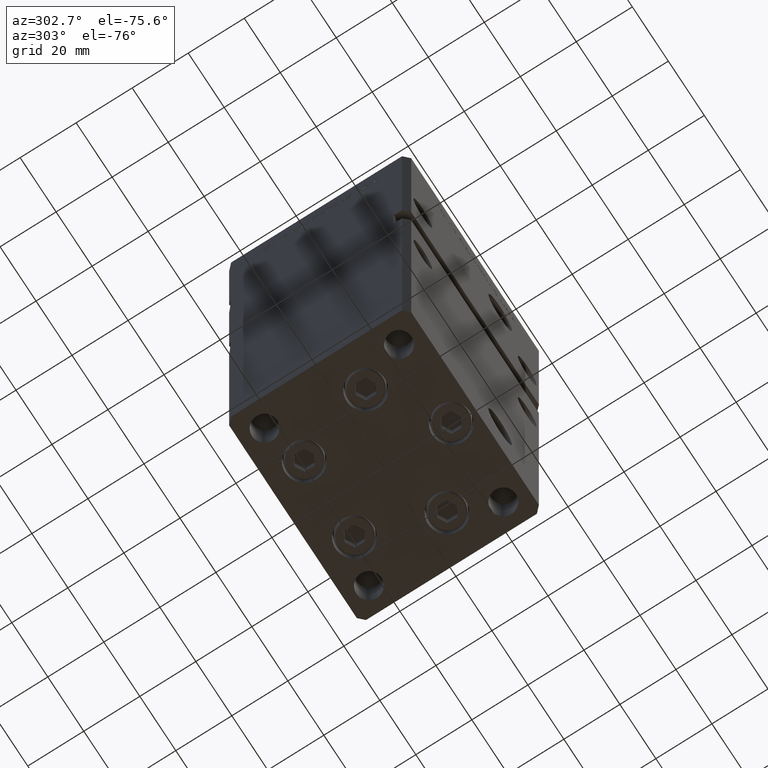
[diagram: clean part render]
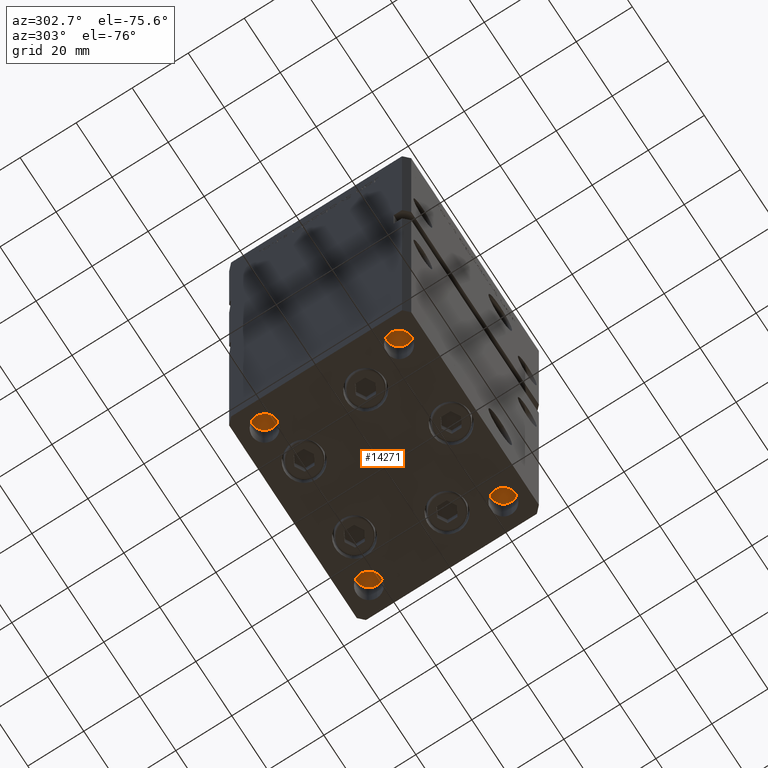
[diagram: same view with one face highlighted and labeled with its STEP entity id]
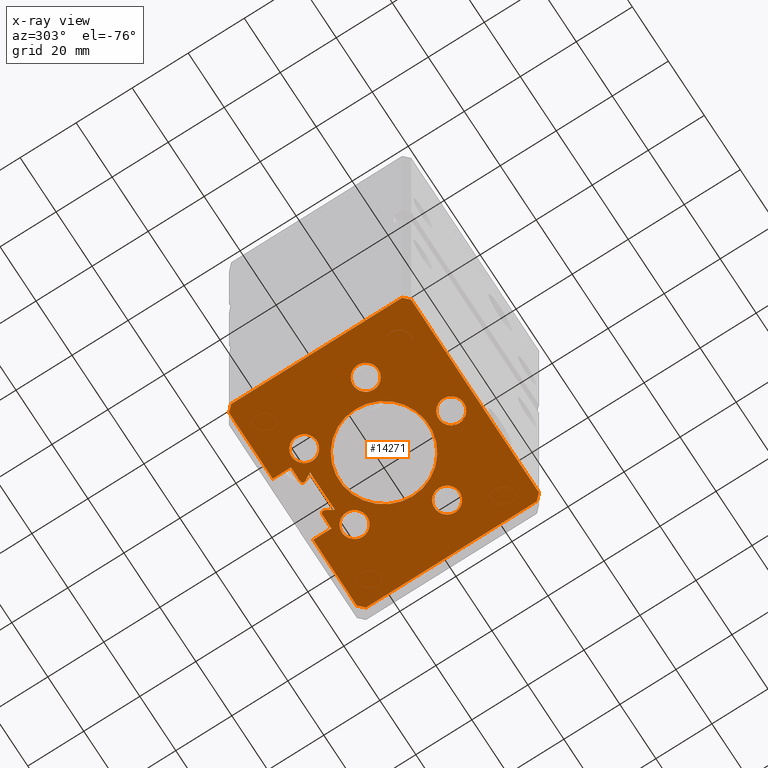
[diagram: x-ray of the same camera — body ghosted, the highlighted face saturated]
A machine part, auxiliary view. The second image highlights one B-rep face of the part: STEP entity #14271.
The next image is the same camera in x-ray: the body ghosted, the highlighted face saturated — about 0% of this face is hidden behind the body in this view.
In plain terms, the highlighted planar face has unit normal (0, 0, -1).
Its self-contained STEP definition (entity closure, byte-faithful):
#315 = CARTESIAN_POINT ( 'NONE',  ( 35.50000000000000711, 32.50000000000000000, 0.000000000000000000 ) ) ;
#439 = ORIENTED_EDGE ( 'NONE', *, *, #35363, .T. ) ;
#707 = FACE_BOUND ( 'NONE', #14861, .T. ) ;
#960 = AXIS2_PLACEMENT_3D ( 'NONE', #35551, #3766, #40863 ) ;
#1090 = CARTESIAN_POINT ( 'NONE',  ( -37.50000000000001421, 30.50000000000001066, 0.000000000000000000 ) ) ;
#1138 = VERTEX_POINT ( 'NONE', #15403 ) ;
#1282 = CARTESIAN_POINT ( 'NONE',  ( -35.50000000000000711, 32.50000000000000000, 0.000000000000000000 ) ) ;
#1397 = VERTEX_POINT ( 'NONE', #44095 ) ;
#1584 = ORIENTED_EDGE ( 'NONE', *, *, #23656, .F. ) ;
#1673 = CARTESIAN_POINT ( 'NONE',  ( 11.24999999999998046, 32.50000000000000000, 0.000000000000000000 ) ) ;
#1699 = ORIENTED_EDGE ( 'NONE', *, *, #34921, .T. ) ;
#1919 = CARTESIAN_POINT ( 'NONE',  ( -13.99106857963322881, 19.49999999999999645, 0.000000000000000000 ) ) ;
#2323 = VERTEX_POINT ( 'NONE', #1673 ) ;
#2393 = VERTEX_POINT ( 'NONE', #34764 ) ;
#2465 = ORIENTED_EDGE ( 'NONE', *, *, #37521, .T. ) ;
#2536 = VERTEX_POINT ( 'NONE', #7804 ) ;
#2589 = CARTESIAN_POINT ( 'NONE',  ( -22.62741699796951877, -8.000000000000008882, 0.000000000000000000 ) ) ;
#2645 = ORIENTED_EDGE ( 'NONE', *, *, #8848, .F. ) ;
#2916 = DIRECTION ( 'NONE',  ( -0.000000000000000000, -0.000000000000000000, -1.000000000000000000 ) ) ;
#3046 = VERTEX_POINT ( 'NONE', #42675 ) ;
#3211 = DIRECTION ( 'NONE',  ( -1.000000000000000000, 0.000000000000000000, 0.000000000000000000 ) ) ;
#3377 = EDGE_CURVE ( 'NONE', #9260, #3046, #11085, .T. ) ;
#3766 = DIRECTION ( 'NONE',  ( 0.000000000000000000, 0.000000000000000000, -1.000000000000000000 ) ) ;
#3886 = CARTESIAN_POINT ( 'NONE',  ( -6.183333333333980164, 26.00000000000000000, 0.000000000000000000 ) ) ;
#3929 = CARTESIAN_POINT ( 'NONE',  ( -4.500000000000000000, -24.00000000000000000, 0.000000000000000000 ) ) ;
#4066 = VECTOR ( 'NONE', #14950, 1000.000000000000114 ) ;
#4152 = LINE ( 'NONE', #3886, #34343 ) ;
#4693 = VERTEX_POINT ( 'NONE', #42072 ) ;
#4743 = FACE_BOUND ( 'NONE', #5696, .T. ) ;
#4760 = AXIS2_PLACEMENT_3D ( 'NONE', #16532, #24347, #32931 ) ;
#4876 = CARTESIAN_POINT ( 'NONE',  ( -5.249999999999979572, 25.06666666666599852, 0.000000000000000000 ) ) ;
#5301 = CIRCLE ( 'NONE', #49955, 16.00000000000000000 ) ;
#5696 = EDGE_LOOP ( 'NONE', ( #32041, #17482 ) ) ;
#5753 = CARTESIAN_POINT ( 'NONE',  ( -37.49999999999999289, -30.50000000000000000, 0.000000000000000000 ) ) ;
#6169 = EDGE_CURVE ( 'NONE', #24141, #29473, #46664, .T. ) ;
#6220 = DIRECTION ( 'NONE',  ( 0.000000000000000000, 0.000000000000000000, -1.000000000000000000 ) ) ;
#6328 = CARTESIAN_POINT ( 'NONE',  ( -6.876153656360448174, 21.99999999999987210, 0.000000000000000000 ) ) ;
#6535 = CARTESIAN_POINT ( 'NONE',  ( -35.49999999999999289, -32.50000000000000000, 0.000000000000000000 ) ) ;
#6630 = AXIS2_PLACEMENT_3D ( 'NONE', #14548, #43300, #10768 ) ;
#6766 = VERTEX_POINT ( 'NONE', #32064 ) ;
#6940 = CARTESIAN_POINT ( 'NONE',  ( 6.183333333333980164, 26.00000000000000000, 0.000000000000000000 ) ) ;
#7092 = ORIENTED_EDGE ( 'NONE', *, *, #28372, .T. ) ;
#7333 = VERTEX_POINT ( 'NONE', #8699 ) ;
#7343 = CARTESIAN_POINT ( 'NONE',  ( 16.00000000000000000, 1.959434878635765131E-15, 0.000000000000000000 ) ) ;
#7411 = DIRECTION ( 'NONE',  ( -1.000000000000000000, 0.000000000000000000, 0.000000000000000000 ) ) ;
#7607 = VERTEX_POINT ( 'NONE', #4876 ) ;
#7804 = CARTESIAN_POINT ( 'NONE',  ( -16.00000000000000000, 0.000000000000000000, 0.000000000000000000 ) ) ;
#7952 = EDGE_CURVE ( 'NONE', #48979, #36835, #11391, .T. ) ;
#7983 = CARTESIAN_POINT ( 'NONE',  ( -35.49999999999999289, -32.50000000000000000, 0.000000000000000000 ) ) ;
#8195 = EDGE_CURVE ( 'NONE', #6766, #4693, #43047, .T. ) ;
#8217 = CARTESIAN_POINT ( 'NONE',  ( 37.49999999999999289, -30.50000000000000000, 0.000000000000000000 ) ) ;
#8260 = EDGE_CURVE ( 'NONE', #48027, #22518, #36175, .T. ) ;
#8439 = CARTESIAN_POINT ( 'NONE',  ( 11.24999999999998046, 26.00000000000000000, 0.000000000000000000 ) ) ;
#8462 = ORIENTED_EDGE ( 'NONE', *, *, #48904, .F. ) ;
#8554 = DIRECTION ( 'NONE',  ( -0.000000000000000000, 0.000000000000000000, 1.000000000000000000 ) ) ;
#8699 = CARTESIAN_POINT ( 'NONE',  ( -9.491068579633232360, 19.49999999999999645, 0.000000000000000000 ) ) ;
#8750 = DIRECTION ( 'NONE',  ( -1.000000000000000000, 0.000000000000000000, 0.000000000000000000 ) ) ;
#8767 = FACE_BOUND ( 'NONE', #28881, .T. ) ;
#8771 = EDGE_CURVE ( 'NONE', #24141, #24007, #39963, .T. ) ;
#8848 = EDGE_CURVE ( 'NONE', #24007, #24542, #40482, .T. ) ;
#9004 = ORIENTED_EDGE ( 'NONE', *, *, #8195, .F. ) ;
#9169 = CARTESIAN_POINT ( 'NONE',  ( 9.491068579633221702, 19.50000000000000000, 0.000000000000000000 ) ) ;
#9177 = VECTOR ( 'NONE', #8750, 1000.000000000000000 ) ;
#9260 = VERTEX_POINT ( 'NONE', #51360 ) ;
#9328 = ORIENTED_EDGE ( 'NONE', *, *, #27043, .T. ) ;
#9482 = VECTOR ( 'NONE', #23019, 1000.000000000000000 ) ;
#9554 = AXIS2_PLACEMENT_3D ( 'NONE', #50020, #25821, #41669 ) ;
#9863 = CARTESIAN_POINT ( 'NONE',  ( -11.24999999999998046, 26.00000000000000000, 0.000000000000000000 ) ) ;
#10323 = CARTESIAN_POINT ( 'NONE',  ( 35.49999999999999289, -32.50000000000000000, 0.000000000000000000 ) ) ;
#10545 = VECTOR ( 'NONE', #36237, 1000.000000000000000 ) ;
#10768 = DIRECTION ( 'NONE',  ( -1.000000000000000000, 0.000000000000000000, 0.000000000000000000 ) ) ;
#10993 = LINE ( 'NONE', #43525, #43571 ) ;
#11085 = LINE ( 'NONE', #47660, #48050 ) ;
#11134 = CARTESIAN_POINT ( 'NONE',  ( 0.000000000000000000, 0.000000000000000000, 0.000000000000000000 ) ) ;
#11391 = LINE ( 'NONE', #12436, #49890 ) ;
#11446 = DIRECTION ( 'NONE',  ( 1.000000000000000000, -0.000000000000000000, -0.000000000000000000 ) ) ;
#11554 = LINE ( 'NONE', #12072, #36205 ) ;
#11740 = AXIS2_PLACEMENT_3D ( 'NONE', #27006, #48212, #18943 ) ;
#11759 = PLANE ( 'NONE',  #39784 ) ;
#11864 = AXIS2_PLACEMENT_3D ( 'NONE', #11134, #27542, #23774 ) ;
#11982 = DIRECTION ( 'NONE',  ( -0.7071067811865506814, -0.7071067811865443531, 0.000000000000000000 ) ) ;
#12072 = CARTESIAN_POINT ( 'NONE',  ( 6.876153656360448174, 21.99999999999987210, 0.000000000000000000 ) ) ;
#12160 = VERTEX_POINT ( 'NONE', #8217 ) ;
#12436 = CARTESIAN_POINT ( 'NONE',  ( 35.50000000000000711, 32.50000000000000000, 0.000000000000000000 ) ) ;
#12698 = ORIENTED_EDGE ( 'NONE', *, *, #34626, .F. ) ;
#13112 = CIRCLE ( 'NONE', #41421, 4.500000000000000888 ) ;
#14171 = DIRECTION ( 'NONE',  ( -0.000000000000000000, -0.000000000000000000, -1.000000000000000000 ) ) ;
#14271 = ADVANCED_FACE ( 'NONE', ( #8767, #4743, #21170, #37539, #707, #17129, #33528 ), #11759, .T. ) ;
#14296 = CARTESIAN_POINT ( 'NONE',  ( -6.183333333333980164, 25.06666666666599852, 0.000000000000000000 ) ) ;
#14548 = CARTESIAN_POINT ( 'NONE',  ( 22.62741699796951877, -8.000000000000000000, 0.000000000000000000 ) ) ;
#14711 = VERTEX_POINT ( 'NONE', #18948 ) ;
#14727 = EDGE_CURVE ( 'NONE', #23694, #2323, #23239, .T. ) ;
#14861 = EDGE_LOOP ( 'NONE', ( #20860, #9004 ) ) ;
#14950 = DIRECTION ( 'NONE',  ( -0.4999999999999996114, -0.8660254037844388186, -0.000000000000000000 ) ) ;
#15137 = AXIS2_PLACEMENT_3D ( 'NONE', #1919, #6220, #39026 ) ;
#15403 = CARTESIAN_POINT ( 'NONE',  ( -6.183333333333980164, 26.00000000000000000, 0.000000000000000000 ) ) ;
#15529 = VECTOR ( 'NONE', #41449, 1000.000000000000000 ) ;
#15686 = EDGE_CURVE ( 'NONE', #27860, #26272, #13112, .T. ) ;
#16025 = EDGE_CURVE ( 'NONE', #1138, #7607, #26867, .T. ) ;
#16062 = DIRECTION ( 'NONE',  ( -1.000000000000000000, 0.000000000000000000, -0.000000000000000000 ) ) ;
#16131 = EDGE_CURVE ( 'NONE', #48803, #42317, #24151, .T. ) ;
#16532 = CARTESIAN_POINT ( 'NONE',  ( -13.99106857963322881, 19.49999999999999645, 0.000000000000000000 ) ) ;
#16779 = CIRCLE ( 'NONE', #4760, 4.499999999999997335 ) ;
#16975 = DIRECTION ( 'NONE',  ( 0.000000000000000000, 0.000000000000000000, -1.000000000000000000 ) ) ;
#17111 = LINE ( 'NONE', #37262, #9177 ) ;
#17129 = FACE_OUTER_BOUND ( 'NONE', #49936, .T. ) ;
#17319 = CARTESIAN_POINT ( 'NONE',  ( 4.500000000000000000, -24.00000000000000000, 0.000000000000000000 ) ) ;
#17482 = ORIENTED_EDGE ( 'NONE', *, *, #33983, .F. ) ;
#18943 = DIRECTION ( 'NONE',  ( -1.000000000000000000, 0.000000000000000000, 0.000000000000000000 ) ) ;
#18948 = CARTESIAN_POINT ( 'NONE',  ( -5.375042956467928512, 24.59999999999899245, 0.000000000000000000 ) ) ;
#19081 = DIRECTION ( 'NONE',  ( 1.000000000000000000, 0.000000000000000000, 0.000000000000000000 ) ) ;
#19912 = DIRECTION ( 'NONE',  ( 0.000000000000000000, 0.000000000000000000, -1.000000000000000000 ) ) ;
#20084 = CARTESIAN_POINT ( 'NONE',  ( -35.50000000000000711, 32.50000000000000000, 0.000000000000000000 ) ) ;
#20278 = AXIS2_PLACEMENT_3D ( 'NONE', #14296, #47880, #31484 ) ;
#20860 = ORIENTED_EDGE ( 'NONE', *, *, #46376, .F. ) ;
#21070 = ORIENTED_EDGE ( 'NONE', *, *, #51601, .T. ) ;
#21170 = FACE_BOUND ( 'NONE', #32029, .T. ) ;
#21582 = LINE ( 'NONE', #25874, #28058 ) ;
#21771 = ORIENTED_EDGE ( 'NONE', *, *, #6169, .T. ) ;
#21943 = VECTOR ( 'NONE', #52867, 1000.000000000000114 ) ;
#22119 = CIRCLE ( 'NONE', #28949, 4.500000000000000000 ) ;
#22246 = DIRECTION ( 'NONE',  ( 0.000000000000000000, 0.000000000000000000, -1.000000000000000000 ) ) ;
#22457 = CARTESIAN_POINT ( 'NONE',  ( 13.99106857963322170, 19.50000000000000000, 0.000000000000000000 ) ) ;
#22518 = VERTEX_POINT ( 'NONE', #3929 ) ;
#22965 = LINE ( 'NONE', #49521, #15529 ) ;
#23019 = DIRECTION ( 'NONE',  ( -0.000000000000000000, -1.000000000000000000, -0.000000000000000000 ) ) ;
#23239 = LINE ( 'NONE', #38817, #51847 ) ;
#23656 = EDGE_CURVE ( 'NONE', #2393, #7333, #16779, .T. ) ;
#23694 = VERTEX_POINT ( 'NONE', #8439 ) ;
#23774 = DIRECTION ( 'NONE',  ( 1.000000000000000000, 0.000000000000000000, 0.000000000000000000 ) ) ;
#23864 = CARTESIAN_POINT ( 'NONE',  ( -37.49999999999999289, -30.50000000000000000, 0.000000000000000000 ) ) ;
#24007 = VERTEX_POINT ( 'NONE', #1282 ) ;
#24141 = VERTEX_POINT ( 'NONE', #44015 ) ;
#24151 = LINE ( 'NONE', #7983, #10545 ) ;
#24202 = EDGE_CURVE ( 'NONE', #46678, #48803, #52353, .T. ) ;
#24347 = DIRECTION ( 'NONE',  ( 0.000000000000000000, 0.000000000000000000, -1.000000000000000000 ) ) ;
#24542 = VERTEX_POINT ( 'NONE', #1090 ) ;
#25418 = DIRECTION ( 'NONE',  ( -1.000000000000000000, 0.000000000000000000, 0.000000000000000000 ) ) ;
#25786 = DIRECTION ( 'NONE',  ( 1.000000000000000000, 0.000000000000000000, 0.000000000000000000 ) ) ;
#25821 = DIRECTION ( 'NONE',  ( 0.000000000000000000, 0.000000000000000000, -1.000000000000000000 ) ) ;
#25874 = CARTESIAN_POINT ( 'NONE',  ( 37.49999999999999289, -30.50000000000000000, 0.000000000000000000 ) ) ;
#26272 = VERTEX_POINT ( 'NONE', #32868 ) ;
#26449 = EDGE_CURVE ( 'NONE', #7333, #2393, #49478, .T. ) ;
#26867 = CIRCLE ( 'NONE', #40567, 0.9333333333340008142 ) ;
#27006 = CARTESIAN_POINT ( 'NONE',  ( 22.62741699796951877, -8.000000000000000000, 0.000000000000000000 ) ) ;
#27043 = EDGE_CURVE ( 'NONE', #7607, #14711, #36611, .T. ) ;
#27097 = ORIENTED_EDGE ( 'NONE', *, *, #26449, .F. ) ;
#27384 = CARTESIAN_POINT ( 'NONE',  ( 27.12741699796952233, -8.000000000000000000, 0.000000000000000000 ) ) ;
#27403 = DIRECTION ( 'NONE',  ( 1.000000000000000000, 0.000000000000000000, 0.000000000000000000 ) ) ;
#27542 = DIRECTION ( 'NONE',  ( -0.000000000000000000, 0.000000000000000000, 1.000000000000000000 ) ) ;
#27617 = EDGE_CURVE ( 'NONE', #45226, #41577, #37495, .T. ) ;
#27846 = EDGE_CURVE ( 'NONE', #12160, #42317, #21582, .T. ) ;
#27860 = VERTEX_POINT ( 'NONE', #9169 ) ;
#28053 = CIRCLE ( 'NONE', #45307, 0.9333333333340008142 ) ;
#28058 = VECTOR ( 'NONE', #29624, 1000.000000000000114 ) ;
#28153 = DIRECTION ( 'NONE',  ( 0.000000000000000000, 0.000000000000000000, -1.000000000000000000 ) ) ;
#28182 = CIRCLE ( 'NONE', #11864, 16.00000000000000000 ) ;
#28372 = EDGE_CURVE ( 'NONE', #46090, #23694, #10993, .T. ) ;
#28833 = DIRECTION ( 'NONE',  ( 0.7071067811865506814, -0.7071067811865443531, 0.000000000000000000 ) ) ;
#28881 = EDGE_LOOP ( 'NONE', ( #1584, #27097 ) ) ;
#28949 = AXIS2_PLACEMENT_3D ( 'NONE', #36031, #19912, #3211 ) ;
#29473 = VERTEX_POINT ( 'NONE', #9863 ) ;
#29624 = DIRECTION ( 'NONE',  ( -0.7071067811865474617, -0.7071067811865474617, 0.000000000000000000 ) ) ;
#29797 = CIRCLE ( 'NONE', #6630, 4.500000000000000888 ) ;
#30172 = CARTESIAN_POINT ( 'NONE',  ( 18.12741699796951877, -8.000000000000000000, 0.000000000000000000 ) ) ;
#31001 = DIRECTION ( 'NONE',  ( 1.000000000000000000, -0.000000000000000000, -0.000000000000000000 ) ) ;
#31101 = DIRECTION ( 'NONE',  ( -1.000000000000000000, 0.000000000000000000, 0.000000000000000000 ) ) ;
#31367 = CARTESIAN_POINT ( 'NONE',  ( 37.50000000000001421, 30.50000000000001066, 0.000000000000000000 ) ) ;
#31400 = EDGE_CURVE ( 'NONE', #1397, #46090, #28053, .T. ) ;
#31484 = DIRECTION ( 'NONE',  ( 1.000000000000000000, 0.000000000000000000, 0.000000000000000000 ) ) ;
#32029 = EDGE_LOOP ( 'NONE', ( #12698, #32032 ) ) ;
#32032 = ORIENTED_EDGE ( 'NONE', *, *, #27617, .F. ) ;
#32041 = ORIENTED_EDGE ( 'NONE', *, *, #15686, .F. ) ;
#32064 = CARTESIAN_POINT ( 'NONE',  ( -18.12741699796951877, -8.000000000000008882, 0.000000000000000000 ) ) ;
#32594 = AXIS2_PLACEMENT_3D ( 'NONE', #2589, #22246, #31101 ) ;
#32755 = VECTOR ( 'NONE', #11982, 1000.000000000000114 ) ;
#32868 = CARTESIAN_POINT ( 'NONE',  ( 18.49106857963322170, 19.50000000000000000, 0.000000000000000000 ) ) ;
#32931 = DIRECTION ( 'NONE',  ( -1.000000000000000000, 0.000000000000000000, 0.000000000000000000 ) ) ;
#33528 = FACE_BOUND ( 'NONE', #44707, .T. ) ;
#33539 = ORIENTED_EDGE ( 'NONE', *, *, #31400, .T. ) ;
#33983 = EDGE_CURVE ( 'NONE', #26272, #27860, #46996, .T. ) ;
#34185 = CARTESIAN_POINT ( 'NONE',  ( 37.50000000000001421, 30.50000000000001066, 0.000000000000000000 ) ) ;
#34343 = VECTOR ( 'NONE', #11446, 1000.000000000000000 ) ;
#34504 = EDGE_CURVE ( 'NONE', #48979, #2323, #17111, .T. ) ;
#34626 = EDGE_CURVE ( 'NONE', #41577, #45226, #29797, .T. ) ;
#34754 = EDGE_CURVE ( 'NONE', #22518, #48027, #22119, .T. ) ;
#34764 = CARTESIAN_POINT ( 'NONE',  ( -18.49106857963322526, 19.49999999999999645, 0.000000000000000000 ) ) ;
#34921 = EDGE_CURVE ( 'NONE', #14711, #9260, #39400, .T. ) ;
#35231 = CIRCLE ( 'NONE', #32594, 4.500000000000000888 ) ;
#35363 = EDGE_CURVE ( 'NONE', #36835, #12160, #37672, .T. ) ;
#35424 = CARTESIAN_POINT ( 'NONE',  ( -11.24999999999998046, 32.50000000000000000, 0.000000000000000000 ) ) ;
#35551 = CARTESIAN_POINT ( 'NONE',  ( -22.62741699796951877, -8.000000000000008882, 0.000000000000000000 ) ) ;
#36031 = CARTESIAN_POINT ( 'NONE',  ( 0.000000000000000000, -24.00000000000000000, 0.000000000000000000 ) ) ;
#36175 = CIRCLE ( 'NONE', #9554, 4.500000000000000000 ) ;
#36205 = VECTOR ( 'NONE', #48644, 1000.000000000000114 ) ;
#36237 = DIRECTION ( 'NONE',  ( 1.000000000000000000, 0.000000000000000000, 0.000000000000000000 ) ) ;
#36353 = ORIENTED_EDGE ( 'NONE', *, *, #27846, .T. ) ;
#36611 = CIRCLE ( 'NONE', #20278, 0.9333333333340008142 ) ;
#36835 = VERTEX_POINT ( 'NONE', #31367 ) ;
#37122 = DIRECTION ( 'NONE',  ( -1.000000000000000000, 0.000000000000000000, 0.000000000000000000 ) ) ;
#37262 = CARTESIAN_POINT ( 'NONE',  ( -11.24999999999998046, 32.50000000000000000, 0.000000000000000000 ) ) ;
#37495 = CIRCLE ( 'NONE', #11740, 4.500000000000000888 ) ;
#37521 = EDGE_CURVE ( 'NONE', #42121, #2536, #28182, .T. ) ;
#37539 = FACE_BOUND ( 'NONE', #47015, .T. ) ;
#37672 = LINE ( 'NONE', #34185, #38438 ) ;
#38193 = CARTESIAN_POINT ( 'NONE',  ( 13.99106857963322170, 19.50000000000000000, 0.000000000000000000 ) ) ;
#38438 = VECTOR ( 'NONE', #38472, 1000.000000000000000 ) ;
#38441 = ORIENTED_EDGE ( 'NONE', *, *, #34754, .F. ) ;
#38472 = DIRECTION ( 'NONE',  ( -3.412570772413390973E-16, -1.000000000000000000, 0.000000000000000000 ) ) ;
#38817 = CARTESIAN_POINT ( 'NONE',  ( 11.24999999999998046, 26.00000000000000000, 0.000000000000000000 ) ) ;
#38831 = DIRECTION ( 'NONE',  ( 0.000000000000000000, 0.000000000000000000, -1.000000000000000000 ) ) ;
#39026 = DIRECTION ( 'NONE',  ( -1.000000000000000000, 0.000000000000000000, 0.000000000000000000 ) ) ;
#39121 = ORIENTED_EDGE ( 'NONE', *, *, #51469, .T. ) ;
#39131 = CARTESIAN_POINT ( 'NONE',  ( -11.24999999999998046, 26.00000000000000000, 0.000000000000000000 ) ) ;
#39288 = ORIENTED_EDGE ( 'NONE', *, *, #8771, .F. ) ;
#39291 = ORIENTED_EDGE ( 'NONE', *, *, #16025, .T. ) ;
#39400 = LINE ( 'NONE', #6328, #4066 ) ;
#39784 = AXIS2_PLACEMENT_3D ( 'NONE', #52889, #28153, #16062 ) ;
#39963 = LINE ( 'NONE', #35424, #51664 ) ;
#40482 = LINE ( 'NONE', #20084, #32755 ) ;
#40567 = AXIS2_PLACEMENT_3D ( 'NONE', #47290, #2916, #19081 ) ;
#40863 = DIRECTION ( 'NONE',  ( -1.000000000000000000, 0.000000000000000000, 0.000000000000000000 ) ) ;
#41421 = AXIS2_PLACEMENT_3D ( 'NONE', #22457, #38831, #25418 ) ;
#41449 = DIRECTION ( 'NONE',  ( 3.412570772413390973E-16, -1.000000000000000000, 0.000000000000000000 ) ) ;
#41577 = VERTEX_POINT ( 'NONE', #30172 ) ;
#41669 = DIRECTION ( 'NONE',  ( -1.000000000000000000, 0.000000000000000000, 0.000000000000000000 ) ) ;
#42072 = CARTESIAN_POINT ( 'NONE',  ( -27.12741699796952233, -8.000000000000008882, 0.000000000000000000 ) ) ;
#42121 = VERTEX_POINT ( 'NONE', #7343 ) ;
#42317 = VERTEX_POINT ( 'NONE', #10323 ) ;
#42675 = CARTESIAN_POINT ( 'NONE',  ( 6.876153656360448174, 21.99999999999987210, 0.000000000000000000 ) ) ;
#43047 = CIRCLE ( 'NONE', #960, 4.500000000000000888 ) ;
#43300 = DIRECTION ( 'NONE',  ( 0.000000000000000000, 0.000000000000000000, -1.000000000000000000 ) ) ;
#43451 = DIRECTION ( 'NONE',  ( 1.000000000000000000, 0.000000000000000000, 0.000000000000000000 ) ) ;
#43525 = CARTESIAN_POINT ( 'NONE',  ( 6.183333333333980164, 26.00000000000000000, 0.000000000000000000 ) ) ;
#43571 = VECTOR ( 'NONE', #27403, 1000.000000000000000 ) ;
#44015 = CARTESIAN_POINT ( 'NONE',  ( -11.24999999999998046, 32.50000000000000000, 0.000000000000000000 ) ) ;
#44095 = CARTESIAN_POINT ( 'NONE',  ( 5.375042956467928512, 24.59999999999899245, 0.000000000000000000 ) ) ;
#44415 = AXIS2_PLACEMENT_3D ( 'NONE', #38193, #16975, #37122 ) ;
#44707 = EDGE_LOOP ( 'NONE', ( #21070, #2465 ) ) ;
#45226 = VERTEX_POINT ( 'NONE', #27384 ) ;
#45307 = AXIS2_PLACEMENT_3D ( 'NONE', #51267, #14171, #43451 ) ;
#45569 = ORIENTED_EDGE ( 'NONE', *, *, #7952, .T. ) ;
#45738 = ORIENTED_EDGE ( 'NONE', *, *, #3377, .T. ) ;
#46090 = VERTEX_POINT ( 'NONE', #6940 ) ;
#46243 = ORIENTED_EDGE ( 'NONE', *, *, #14727, .T. ) ;
#46376 = EDGE_CURVE ( 'NONE', #4693, #6766, #35231, .T. ) ;
#46463 = CARTESIAN_POINT ( 'NONE',  ( 0.000000000000000000, 0.000000000000000000, 0.000000000000000000 ) ) ;
#46523 = EDGE_CURVE ( 'NONE', #29473, #1138, #4152, .T. ) ;
#46664 = LINE ( 'NONE', #39131, #9482 ) ;
#46678 = VERTEX_POINT ( 'NONE', #5753 ) ;
#46996 = CIRCLE ( 'NONE', #44415, 4.500000000000000888 ) ;
#47015 = EDGE_LOOP ( 'NONE', ( #38441, #49958 ) ) ;
#47168 = ORIENTED_EDGE ( 'NONE', *, *, #46523, .T. ) ;
#47290 = CARTESIAN_POINT ( 'NONE',  ( -6.183333333333980164, 25.06666666666599852, 0.000000000000000000 ) ) ;
#47442 = ORIENTED_EDGE ( 'NONE', *, *, #16131, .F. ) ;
#47660 = CARTESIAN_POINT ( 'NONE',  ( 6.876153656360448174, 21.99999999999987210, 0.000000000000000000 ) ) ;
#47692 = DIRECTION ( 'NONE',  ( 0.000000000000000000, 1.000000000000000000, 0.000000000000000000 ) ) ;
#47880 = DIRECTION ( 'NONE',  ( -0.000000000000000000, -0.000000000000000000, -1.000000000000000000 ) ) ;
#48027 = VERTEX_POINT ( 'NONE', #17319 ) ;
#48050 = VECTOR ( 'NONE', #31001, 1000.000000000000000 ) ;
#48212 = DIRECTION ( 'NONE',  ( 0.000000000000000000, 0.000000000000000000, -1.000000000000000000 ) ) ;
#48644 = DIRECTION ( 'NONE',  ( -0.4999999999999996114, 0.8660254037844388186, 0.000000000000000000 ) ) ;
#48803 = VERTEX_POINT ( 'NONE', #6535 ) ;
#48904 = EDGE_CURVE ( 'NONE', #24542, #46678, #22965, .T. ) ;
#48979 = VERTEX_POINT ( 'NONE', #315 ) ;
#49478 = CIRCLE ( 'NONE', #15137, 4.499999999999997335 ) ;
#49521 = CARTESIAN_POINT ( 'NONE',  ( -37.50000000000001421, 30.50000000000001066, 0.000000000000000000 ) ) ;
#49890 = VECTOR ( 'NONE', #28833, 1000.000000000000114 ) ;
#49936 = EDGE_LOOP ( 'NONE', ( #21771, #47168, #39291, #9328, #1699, #45738, #39121, #33539, #7092, #46243, #50677, #45569, #439, #36353, #47442, #52323, #8462, #2645, #39288 ) ) ;
#49955 = AXIS2_PLACEMENT_3D ( 'NONE', #46463, #8554, #25786 ) ;
#49958 = ORIENTED_EDGE ( 'NONE', *, *, #8260, .F. ) ;
#50020 = CARTESIAN_POINT ( 'NONE',  ( 0.000000000000000000, -24.00000000000000000, 0.000000000000000000 ) ) ;
#50677 = ORIENTED_EDGE ( 'NONE', *, *, #34504, .F. ) ;
#51267 = CARTESIAN_POINT ( 'NONE',  ( 6.183333333333980164, 25.06666666666599852, 0.000000000000000000 ) ) ;
#51360 = CARTESIAN_POINT ( 'NONE',  ( -6.876153656360448174, 21.99999999999987210, 0.000000000000000000 ) ) ;
#51469 = EDGE_CURVE ( 'NONE', #3046, #1397, #11554, .T. ) ;
#51601 = EDGE_CURVE ( 'NONE', #2536, #42121, #5301, .T. ) ;
#51664 = VECTOR ( 'NONE', #7411, 1000.000000000000000 ) ;
#51847 = VECTOR ( 'NONE', #47692, 1000.000000000000000 ) ;
#52323 = ORIENTED_EDGE ( 'NONE', *, *, #24202, .F. ) ;
#52353 = LINE ( 'NONE', #23864, #21943 ) ;
#52867 = DIRECTION ( 'NONE',  ( 0.7071067811865474617, -0.7071067811865474617, 0.000000000000000000 ) ) ;
#52889 = CARTESIAN_POINT ( 'NONE',  ( 0.000000000000000000, 0.000000000000000000, 0.000000000000000000 ) ) ;